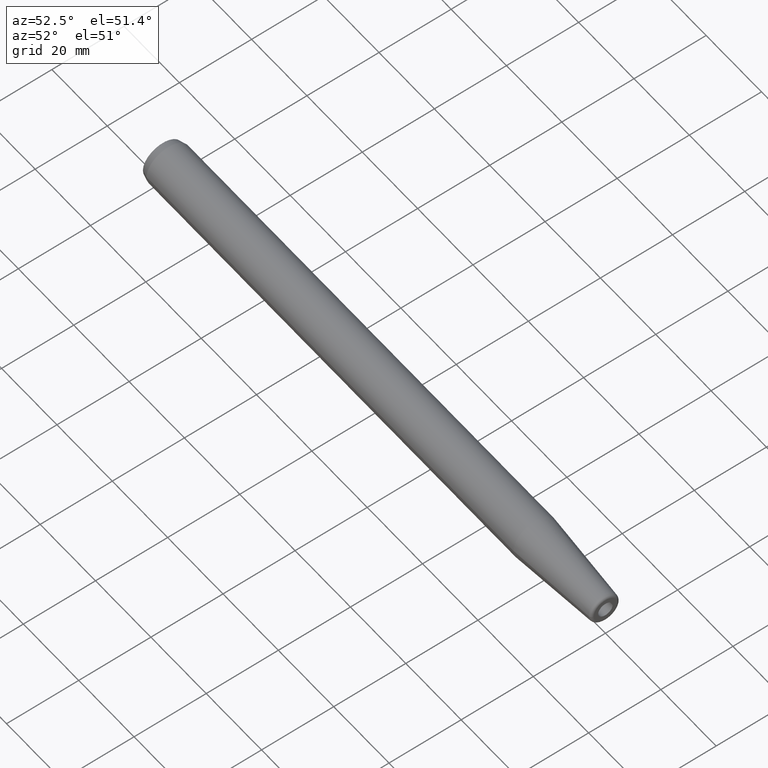
[diagram: clean part render]
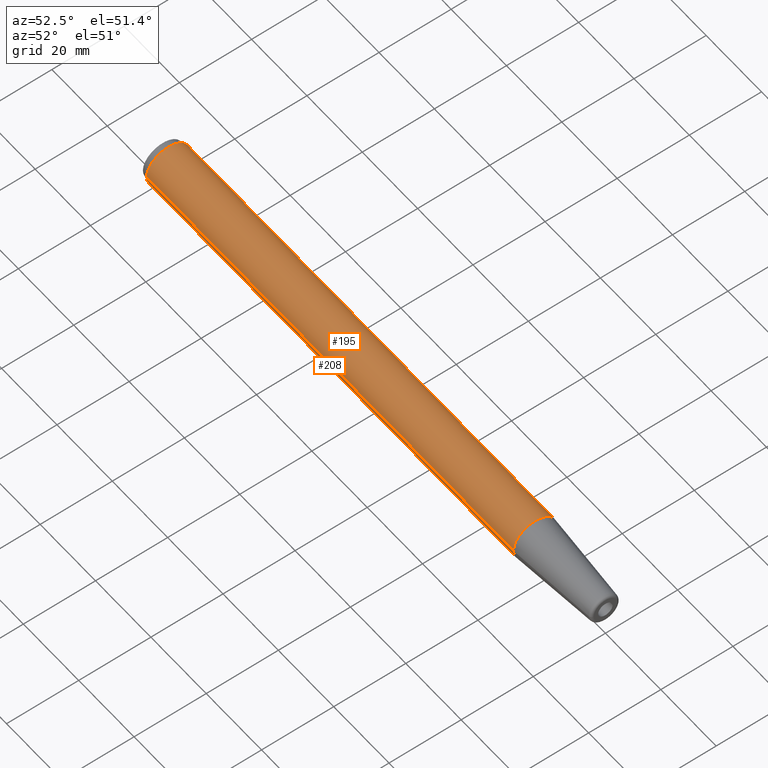
[diagram: same view with one multi-face feature highlighted, each face labeled with its STEP entity id]
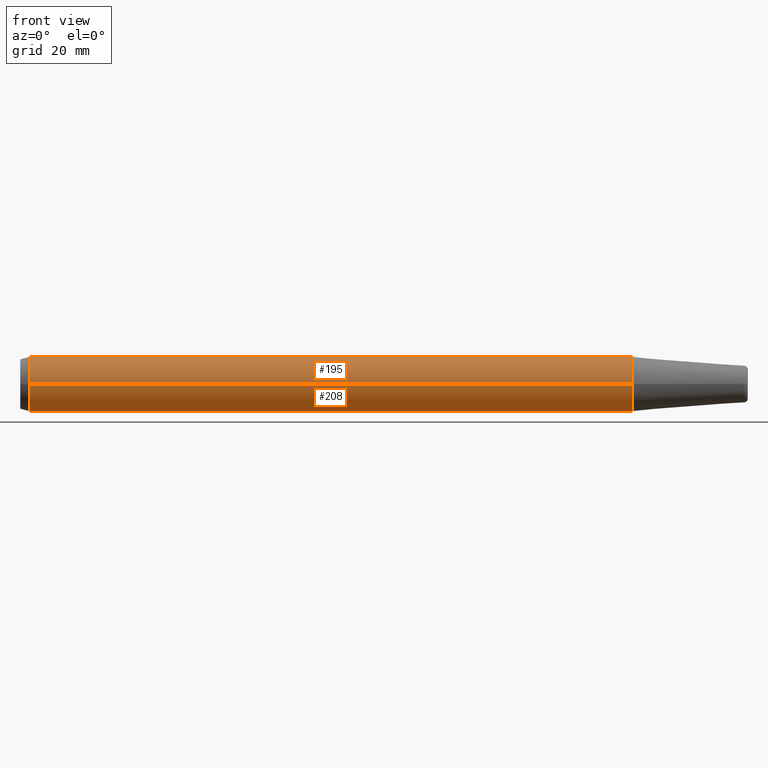
[diagram: same view with one multi-face feature highlighted, each face labeled with its STEP entity id]
A machine part, auxiliary view. The highlighted faces form ONE feature: a constant-radius fillet chain: 2 tangent blend faces with common blend radius 6 mm. The faces share edges in the B-rep.
A second angle (front view) of the same feature is appended — it is thin or edge-on in the first view.
Their STEP definitions:
[1] entity #208 (Cylinder):
#29=CARTESIAN_POINT('',(2.E0,0.E0,0.E0));
#30=DIRECTION('',(-1.E0,0.E0,0.E0));
#31=DIRECTION('',(0.E0,1.E0,0.E0));
#32=AXIS2_PLACEMENT_3D('',#29,#30,#31);
#34=DIRECTION('',(-1.E0,2.443402536016E-12,6.058327627998E-11));
#35=VECTOR('',#34,1.325875905289E2);
#36=CARTESIAN_POINT('',(1.345875905277E2,-6.E0,0.E0));
#37=LINE('',#36,#35);
#38=CARTESIAN_POINT('',(1.345875905277E2,0.E0,0.E0));
#39=DIRECTION('',(-1.E0,0.E0,0.E0));
#40=DIRECTION('',(0.E0,1.E0,0.E0));
#41=AXIS2_PLACEMENT_3D('',#38,#39,#40);
#43=DIRECTION('',(-1.E0,-2.443402536016E-12,-6.058328268956E-11));
#44=VECTOR('',#43,1.325875905289E2);
#45=CARTESIAN_POINT('',(1.345875905277E2,6.E0,0.E0));
#46=LINE('',#45,#44);
#113=CARTESIAN_POINT('',(1.345875905277E2,6.E0,0.E0));
#114=CARTESIAN_POINT('',(1.345875905277E2,-6.E0,0.E0));
#115=VERTEX_POINT('',#113);
#116=VERTEX_POINT('',#114);
#129=CARTESIAN_POINT('',(2.E0,6.E0,0.E0));
#130=CARTESIAN_POINT('',(2.E0,-6.E0,0.E0));
#131=VERTEX_POINT('',#129);
#132=VERTEX_POINT('',#130);
#196=CARTESIAN_POINT('',(-8.E0,0.E0,0.E0));
#197=DIRECTION('',(1.E0,0.E0,0.E0));
#198=DIRECTION('',(0.E0,-1.E0,0.E0));
#199=AXIS2_PLACEMENT_3D('',#196,#197,#198);
#200=CYLINDRICAL_SURFACE('',#199,6.E0);
#201=ORIENTED_EDGE('',*,*,#161,.T.);
#202=ORIENTED_EDGE('',*,*,#191,.F.);
#204=ORIENTED_EDGE('',*,*,#203,.F.);
#205=ORIENTED_EDGE('',*,*,#187,.T.);
#206=EDGE_LOOP('',(#201,#202,#204,#205));
#207=FACE_OUTER_BOUND('',#206,.F.);
#208=ADVANCED_FACE('',(#207),#200,.T.);
#33=CIRCLE('',#32,6.E0);
#42=CIRCLE('',#41,6.E0);
#161=EDGE_CURVE('',#131,#132,#33,.T.);
#187=EDGE_CURVE('',#115,#131,#46,.T.);
#191=EDGE_CURVE('',#116,#132,#37,.T.);
#203=EDGE_CURVE('',#115,#116,#42,.T.);
[2] entity #195 (Cylinder):
#19=CARTESIAN_POINT('',(2.E0,0.E0,0.E0));
#20=DIRECTION('',(-1.E0,0.E0,0.E0));
#21=DIRECTION('',(0.E0,-1.E0,0.E0));
#22=AXIS2_PLACEMENT_3D('',#19,#20,#21);
#24=CARTESIAN_POINT('',(1.345875905277E2,0.E0,0.E0));
#25=DIRECTION('',(1.E0,0.E0,0.E0));
#26=DIRECTION('',(0.E0,1.E0,0.E0));
#27=AXIS2_PLACEMENT_3D('',#24,#25,#26);
#34=DIRECTION('',(-1.E0,2.443402536016E-12,6.058327627998E-11));
#35=VECTOR('',#34,1.325875905289E2);
#36=CARTESIAN_POINT('',(1.345875905277E2,-6.E0,0.E0));
#37=LINE('',#36,#35);
#43=DIRECTION('',(-1.E0,-2.443402536016E-12,-6.058328268956E-11));
#44=VECTOR('',#43,1.325875905289E2);
#45=CARTESIAN_POINT('',(1.345875905277E2,6.E0,0.E0));
#46=LINE('',#45,#44);
#113=CARTESIAN_POINT('',(1.345875905277E2,6.E0,0.E0));
#114=CARTESIAN_POINT('',(1.345875905277E2,-6.E0,0.E0));
#115=VERTEX_POINT('',#113);
#116=VERTEX_POINT('',#114);
#129=CARTESIAN_POINT('',(2.E0,6.E0,0.E0));
#130=CARTESIAN_POINT('',(2.E0,-6.E0,0.E0));
#131=VERTEX_POINT('',#129);
#132=VERTEX_POINT('',#130);
#181=CARTESIAN_POINT('',(-8.E0,0.E0,0.E0));
#182=DIRECTION('',(1.E0,0.E0,0.E0));
#183=DIRECTION('',(0.E0,-1.E0,0.E0));
#184=AXIS2_PLACEMENT_3D('',#181,#182,#183);
#185=CYLINDRICAL_SURFACE('',#184,6.E0);
#186=ORIENTED_EDGE('',*,*,#175,.T.);
#188=ORIENTED_EDGE('',*,*,#187,.F.);
#190=ORIENTED_EDGE('',*,*,#189,.T.);
#192=ORIENTED_EDGE('',*,*,#191,.T.);
#193=EDGE_LOOP('',(#186,#188,#190,#192));
#194=FACE_OUTER_BOUND('',#193,.F.);
#195=ADVANCED_FACE('',(#194),#185,.T.);
#23=CIRCLE('',#22,6.E0);
#28=CIRCLE('',#27,6.E0);
#175=EDGE_CURVE('',#132,#131,#23,.T.);
#187=EDGE_CURVE('',#115,#131,#46,.T.);
#189=EDGE_CURVE('',#115,#116,#28,.T.);
#191=EDGE_CURVE('',#116,#132,#37,.T.);